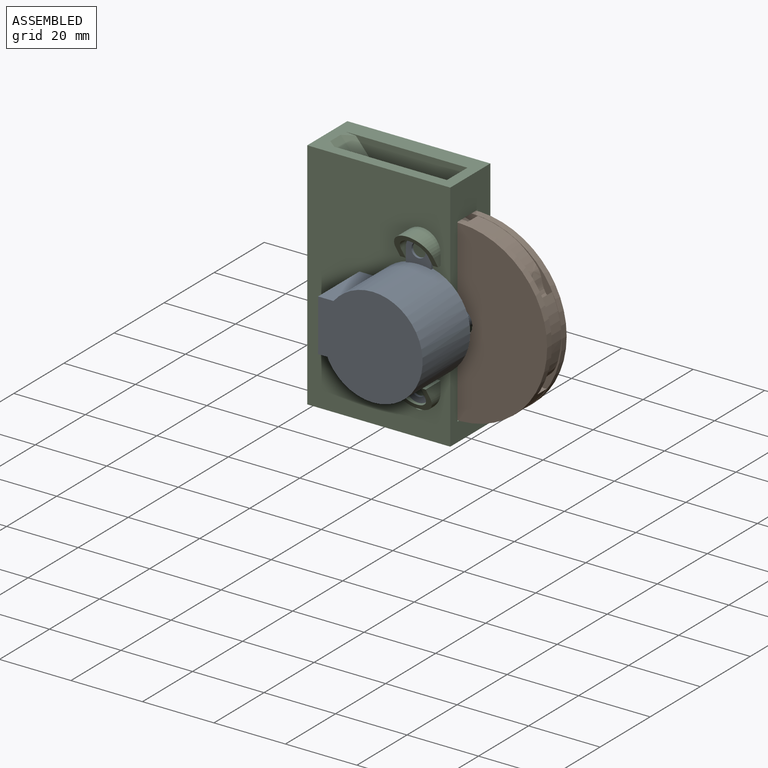
[diagram: assembled view]
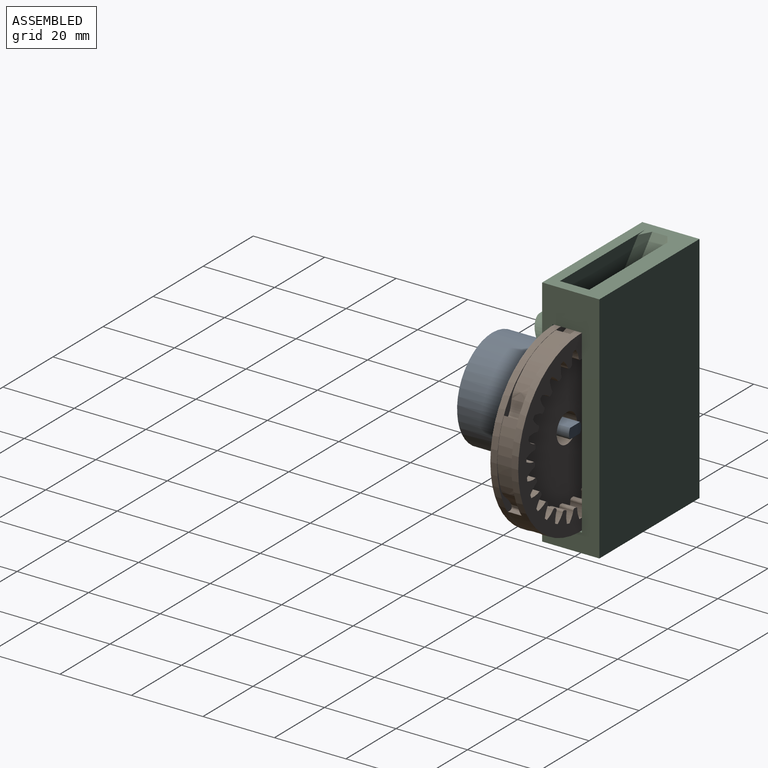
[diagram: assembled view, second angle]
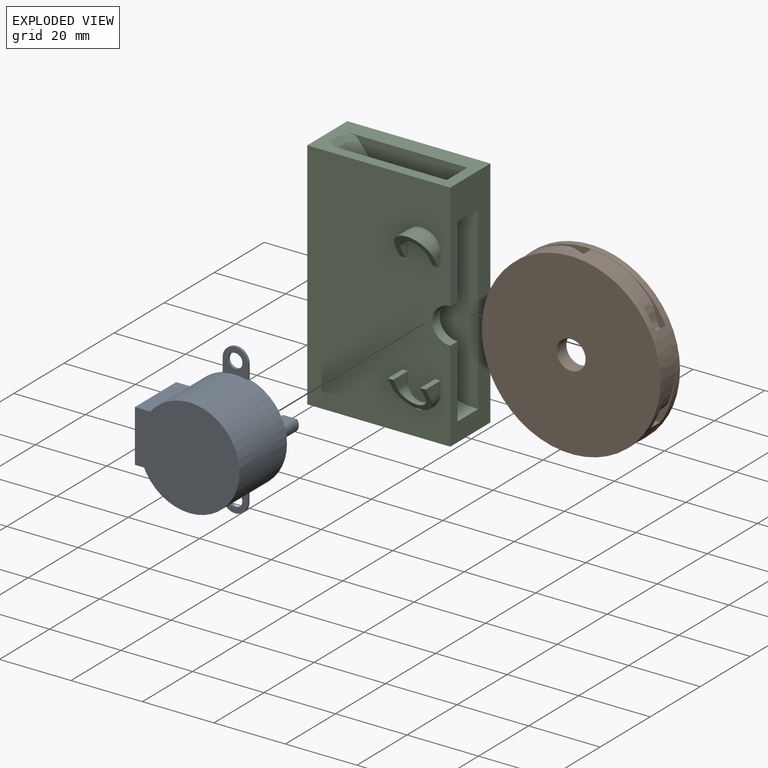
[diagram: exploded view]
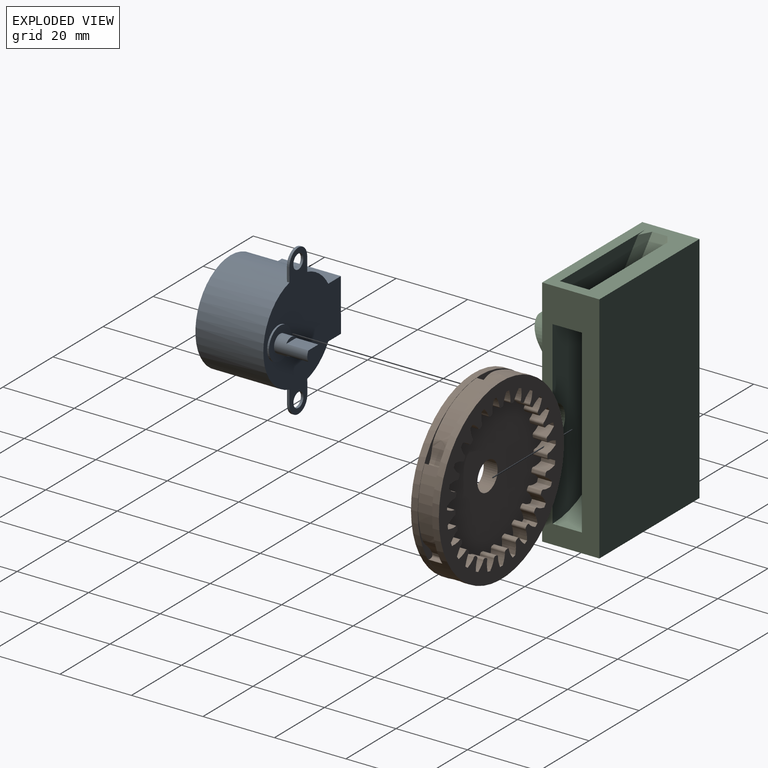
[diagram: exploded view, second angle]
ASSEMBLY  parts=3 mates=2
PART A: 25 faces, bbox 42.1x31x28.8 mm
  f0: cylinder r=14mm len=28mm, axis (0,0,1), area 1407.9mm2, adj f1,f2,f3,f4,f7,f8,f9,f12
  f1: plane 28x28mm, normal (0,0,-1), area 615.8mm2, adj f0
  f2: plane 42.1x31mm, normal (0,0,1), area 671.9mm2, adj f0,f3,f4,f5,f6,f8,f9,f10
  f3: plane 3.96x0.7mm, normal (0,1,0), area 2.8mm2, adj f0,f2,f5,f7
  f4: plane 3.96x0.7mm, normal (0,-1,0), area 2.8mm2, adj f0,f2,f5,f7
  f5: cylinder r=3.55mm len=7.1mm, axis (0,0,1), area 7.8mm2, adj f2,f3,f4,f7
  f6: cylinder r=2mm len=4mm, axis (0,0,1), area 8.8mm2, adj f2,f7
  f7: plane 7.51x7.1mm, normal (0,0,-1), area 33.2mm2, adj f0,f3,f4,f5,f6
  f8: plane 3.96x0.7mm, normal (0,-1,0), area 2.8mm2, adj f0,f2,f10,f12
  f9: plane 3.96x0.7mm, normal (0,1,0), area 2.8mm2, adj f0,f2,f10,f12
  f10: cylinder r=3.55mm len=7.1mm, axis (0,0,1), area 7.8mm2, adj f2,f8,f9,f12
  f11: cylinder r=2mm len=4mm, axis (0,0,1), area 8.8mm2, adj f2,f12
  f12: plane 7.51x7.1mm, normal (0,0,-1), area 33.2mm2, adj f0,f8,f9,f10,f11
  f13: plane 16.5x5.05mm, normal (-1,0,0), area 83.4mm2, adj f0,f2,f14,f16
  f14: plane 16.5x14.6mm, normal (0,-1,0), area 240.9mm2, adj f2,f13,f15,f16
  f15: plane 16.5x5.05mm, normal (1,0,0), area 83.4mm2, adj f0,f2,f14,f16
  f16: plane 14.6x5.05mm, normal (0,0,-1), area 53.5mm2, adj f0,f13,f14,f15
  f17: cylinder r=4.5mm len=9mm, axis (0,0,-1), area 14.1mm2, adj f2,f18
  f18: plane 9x9mm, normal (0,0,1), area 44.8mm2, adj f17,f19
  f19: cylinder r=2.45mm len=9.3mm, axis (0,0,-1), area 86.2mm2, adj f18,f20,f21,f22,f23,f24
  f20: plane 3.95x1mm, normal (0,0,1), area 2.8mm2, adj f19,f23
  f21: plane 3.95x1mm, normal (0,0,1), area 2.8mm2, adj f19,f22
  f22: plane 6.2x3.95mm, normal (1,0,0), area 24.5mm2, adj f19,f21,f24
  f23: plane 6.2x3.95mm, normal (-1,0,0), area 24.5mm2, adj f19,f20,f24
  f24: plane 4.9x2.9mm, normal (0,0,1), area 13.3mm2, adj f19,f22,f23
PART B: 194 faces, bbox 7.8x50x50 mm
  f0: plane 50x50mm, normal (-1,0,0), area 692.2mm2, adj f25,f31,f32,f33,f34,f35,f36,f37
  f1: extruded ~11.61x5.04mm, area 52.5mm2, adj f4,f22,f26,f29
  f2: cylinder r=24.9mm len=8.35mm, axis (-1,0,0), area 46.3mm2, adj f3,f5,f26,f29
  f3: extruded ~4x1.65mm, area 10.9mm2, adj f2,f4,f26,f29
  f4: cylinder r=23mm len=4mm, axis (-1,0,0), area 3.9mm2, adj f1,f3,f26,f29
  f5: extruded ~12.58x4mm, area 52.5mm2, adj f2,f8,f26,f29
  f6: cylinder r=24.9mm len=10.99mm, axis (-1,0,0), area 46.3mm2, adj f7,f9,f26,f29
  f7: extruded ~4x1.88mm, area 10.9mm2, adj f6,f8,f26,f29
  f8: cylinder r=23mm len=4mm, axis (-1,0,0), area 3.9mm2, adj f5,f7,f26,f29
  f9: extruded ~10.17x7.53mm, area 52.5mm2, adj f6,f12,f26,f29
  f10: cylinder r=24.9mm len=11.17mm, axis (-1,0,0), area 46.3mm2, adj f11,f13,f26,f29
  f11: extruded ~4x1.8mm, area 10.9mm2, adj f10,f12,f26,f29
  f12: cylinder r=23mm len=4mm, axis (-1,0,0), area 3.9mm2, adj f9,f11,f26,f29
  f13: extruded ~11.61x5.04mm, area 52.5mm2, adj f10,f16,f26,f29
  f14: cylinder r=24.9mm len=8.35mm, axis (-1,0,0), area 46.3mm2, adj f15,f17,f26,f29
  f15: extruded ~4x1.65mm, area 10.9mm2, adj f14,f16,f26,f29
  f16: cylinder r=23mm len=4mm, axis (-1,0,0), area 3.9mm2, adj f13,f15,f26,f29
  f17: extruded ~12.58x4mm, area 52.5mm2, adj f14,f20,f26,f29
  f18: cylinder r=24.9mm len=10.99mm, axis (-1,0,0), area 46.3mm2, adj f19,f21,f26,f29
  f19: extruded ~4x1.88mm, area 10.9mm2, adj f18,f20,f26,f29
  f20: cylinder r=23mm len=4mm, axis (-1,0,0), area 3.9mm2, adj f17,f19,f26,f29
  f21: extruded ~10.17x7.53mm, area 52.5mm2, adj f18,f24,f26,f29
  f22: cylinder r=24.9mm len=11.17mm, axis (-1,0,0), area 46.3mm2, adj f1,f23,f26,f29
  f23: extruded ~4x1.8mm, area 10.9mm2, adj f22,f24,f26,f29
  f24: cylinder r=23mm len=4mm, axis (-1,0,0), area 3.9mm2, adj f21,f23,f26,f29
  f25: cylinder r=25mm len=50mm, axis (-1,0,0), area 298.5mm2, adj f0,f26
  f26: plane 50x50mm, normal (1,0,0), area 80.2mm2, adj f1,f2,f3,f4,f5,f6,f7,f8
  f27: cylinder r=25mm len=50mm, axis (-1,0,0), area 298.5mm2, adj f28,f29
  f28: plane 50x50mm, normal (1,0,0), area 1912mm2, adj f27,f30
  f29: plane 50x50mm, normal (-1,0,0), area 80.2mm2, adj f1,f2,f3,f4,f5,f6,f7,f8
  f30: cylinder r=4.05mm len=8.1mm, axis (-1,0,0), area 99.2mm2, adj f28,f193
  f31: cylinder r=21.75mm len=3.9mm, axis (-1,0,0), area 4.3mm2, adj f0,f178,f190,f193
  f32: cylinder r=21.75mm len=3.9mm, axis (-1,0,0), area 4.3mm2, adj f0,f185,f188,f193
  f33: cylinder r=21.75mm len=3.9mm, axis (-1,0,0), area 4.3mm2, adj f0,f173,f180,f193
  f34: cylinder r=21.75mm len=3.9mm, axis (-1,0,0), area 4.3mm2, adj f0,f58,f175,f193
  f35: cylinder r=21.75mm len=3.9mm, axis (-1,0,0), area 4.3mm2, adj f0,f170,f183,f193
  f36: cylinder r=21.75mm len=3.9mm, axis (-1,0,0), area 4.3mm2, adj f0,f165,f168,f193
  f37: cylinder r=21.75mm len=3.9mm, axis (-1,0,0), area 4.3mm2, adj f0,f160,f163,f193
  f38: cylinder r=21.75mm len=3.9mm, axis (-1,0,0), area 4.3mm2, adj f0,f155,f158,f193
  f39: cylinder r=21.75mm len=3.9mm, axis (-1,0,0), area 4.3mm2, adj f0,f143,f150,f193
  f40: cylinder r=21.75mm len=3.9mm, axis (-1,0,0), area 4.3mm2, adj f0,f133,f145,f193
  f41: cylinder r=21.75mm len=3.9mm, axis (-1,0,0), area 4.3mm2, adj f0,f140,f153,f193
  f42: cylinder r=21.75mm len=3.9mm, axis (-1,0,0), area 4.3mm2, adj f0,f135,f138,f193
  f43: cylinder r=21.75mm len=3.9mm, axis (-1,0,0), area 4.3mm2, adj f0,f130,f148,f193
  f44: cylinder r=21.75mm len=3.9mm, axis (-1,0,0), area 4.3mm2, adj f0,f125,f128,f193
  f45: cylinder r=21.75mm len=3.9mm, axis (-1,0,0), area 4.3mm2, adj f0,f120,f123,f193
  f46: cylinder r=21.75mm len=3.9mm, axis (-1,0,0), area 4.3mm2, adj f0,f115,f118,f193
  f47: cylinder r=21.75mm len=3.9mm, axis (-1,0,0), area 4.3mm2, adj f0,f103,f110,f193
  f48: cylinder r=21.75mm len=3.9mm, axis (-1,0,0), area 4.3mm2, adj f0,f93,f105,f193
  f49: cylinder r=21.75mm len=3.9mm, axis (-1,0,0), area 4.3mm2, adj f0,f88,f100,f193
  f50: cylinder r=21.75mm len=3.9mm, axis (-1,0,0), area 4.3mm2, adj f0,f95,f98,f193
  f51: cylinder r=21.75mm len=3.9mm, axis (-1,0,0), area 4.3mm2, adj f0,f83,f90,f193
  f52: cylinder r=21.75mm len=3.9mm, axis (-1,0,0), area 4.3mm2, adj f0,f78,f85,f193
  f53: cylinder r=21.75mm len=3.9mm, axis (-1,0,0), area 4.3mm2, adj f0,f73,f80,f193
  f54: cylinder r=21.75mm len=3.9mm, axis (-1,0,0), area 4.3mm2, adj f0,f63,f75,f193
  f55: cylinder r=21.75mm len=3.9mm, axis (-1,0,0), area 4.3mm2, adj f0,f70,f113,f193
  f56: cylinder r=21.75mm len=3.9mm, axis (-1,0,0), area 4.3mm2, adj f0,f65,f68,f193
  f57: cylinder r=21.75mm len=3.9mm, axis (-1,0,0), area 4.3mm2, adj f0,f60,f108,f193
  f58: extruded ~3.9x2.75mm, area 11.8mm2, adj f0,f34,f61,f193
  f59: cylinder r=18.38mm len=3.9mm, axis (-1,0,0), area 2mm2, adj f0,f61,f62,f193
  f60: extruded ~3.9x2.75mm, area 11.8mm2, adj f0,f57,f62,f193
  f61: cylinder r=0.56mm len=3.9mm, axis (-1,0,0), area 3.4mm2, adj f0,f58,f59,f193
  f62: cylinder r=0.56mm len=3.9mm, axis (-1,0,0), area 3.4mm2, adj f0,f59,f60,f193
  f63: extruded ~3.9x2.97mm, area 11.8mm2, adj f0,f54,f66,f193
  f64: cylinder r=18.38mm len=3.9mm, axis (-1,0,0), area 2mm2, adj f0,f66,f67,f193
  f65: extruded ~3.9x2.39mm, area 11.8mm2, adj f0,f56,f67,f193
  f66: cylinder r=0.56mm len=3.9mm, axis (-1,0,0), area 3.4mm2, adj f0,f63,f64,f193
  f67: cylinder r=0.56mm len=3.9mm, axis (-1,0,0), area 3.4mm2, adj f0,f64,f65,f193
  f68: extruded ~3.9x2.8mm, area 11.8mm2, adj f0,f56,f71,f193
  f69: cylinder r=18.38mm len=3.9mm, axis (-1,0,0), area 2mm2, adj f0,f71,f72,f193
  f70: extruded ~3.9x2.74mm, area 11.8mm2, adj f0,f55,f72,f193
  f71: cylinder r=0.56mm len=3.9mm, axis (-1,0,0), area 3.4mm2, adj f0,f68,f69,f193
  f72: cylinder r=0.56mm len=3.9mm, axis (-1,0,0), area 3.4mm2, adj f0,f69,f70,f193
  f73: extruded ~3.9x2.97mm, area 11.8mm2, adj f0,f53,f76,f193
  f74: cylinder r=18.38mm len=3.9mm, axis (-1,0,0), area 2mm2, adj f0,f76,f77,f193
  f75: extruded ~3.9x2.3mm, area 11.8mm2, adj f0,f54,f77,f193
  f76: cylinder r=0.56mm len=3.9mm, axis (-1,0,0), area 3.4mm2, adj f0,f73,f74,f193
  f77: cylinder r=0.56mm len=3.9mm, axis (-1,0,0), area 3.4mm2, adj f0,f74,f75,f193
  f78: extruded ~3.9x2.82mm, area 11.8mm2, adj f0,f52,f81,f193
  f79: cylinder r=18.38mm len=3.9mm, axis (-1,0,0), area 2mm2, adj f0,f81,f82,f193
  f80: extruded ~3.9x2.68mm, area 11.8mm2, adj f0,f53,f82,f193
  f81: cylinder r=0.56mm len=3.9mm, axis (-1,0,0), area 3.4mm2, adj f0,f78,f79,f193
  f82: cylinder r=0.56mm len=3.9mm, axis (-1,0,0), area 3.4mm2, adj f0,f79,f80,f193
  f83: extruded ~3.9x2.51mm, area 11.8mm2, adj f0,f51,f86,f193
  f84: cylinder r=18.38mm len=3.9mm, axis (-1,0,0), area 2mm2, adj f0,f86,f87,f193
  f85: extruded ~3.9x2.91mm, area 11.8mm2, adj f0,f52,f87,f193
  f86: cylinder r=0.56mm len=3.9mm, axis (-1,0,0), area 3.4mm2, adj f0,f83,f84,f193
  f87: cylinder r=0.56mm len=3.9mm, axis (-1,0,0), area 3.4mm2, adj f0,f84,f85,f193
  f88: extruded ~3.9x2.16mm, area 11.8mm2, adj f0,f49,f91,f193
  f89: cylinder r=18.38mm len=3.9mm, axis (-1,0,0), area 2mm2, adj f0,f91,f92,f193
  f90: extruded ~3.9x2.99mm, area 11.8mm2, adj f0,f51,f92,f193
  f91: cylinder r=0.56mm len=3.9mm, axis (-1,0,0), area 3.4mm2, adj f0,f88,f89,f193
  f92: cylinder r=0.56mm len=3.9mm, axis (-1,0,0), area 3.4mm2, adj f0,f89,f90,f193
  f93: extruded ~3.9x2.86mm, area 11.8mm2, adj f0,f48,f96,f193
  f94: cylinder r=18.38mm len=3.9mm, axis (-1,0,0), area 2mm2, adj f0,f96,f97,f193
  f95: extruded ~3.9x2.66mm, area 11.8mm2, adj f0,f50,f97,f193
  f96: cylinder r=0.56mm len=3.9mm, axis (-1,0,0), area 3.4mm2, adj f0,f93,f94,f193
  f97: cylinder r=0.56mm len=3.9mm, axis (-1,0,0), area 3.4mm2, adj f0,f94,f95,f193
  f98: extruded ~3.9x2.58mm, area 11.8mm2, adj f0,f50,f101,f193
  f99: cylinder r=18.38mm len=3.9mm, axis (-1,0,0), area 2mm2, adj f0,f101,f102,f193
  f100: extruded ~3.9x2.9mm, area 11.8mm2, adj f0,f49,f102,f193
  f101: cylinder r=0.56mm len=3.9mm, axis (-1,0,0), area 3.4mm2, adj f0,f98,f99,f193
  f102: cylinder r=0.56mm len=3.9mm, axis (-1,0,0), area 3.4mm2, adj f0,f99,f100,f193
  f103: extruded ~3.9x2.98mm, area 11.8mm2, adj f0,f47,f106,f193
  f104: cylinder r=18.38mm len=3.9mm, axis (-1,0,0), area 2mm2, adj f0,f106,f107,f193
  f105: extruded ~3.9x2.28mm, area 11.8mm2, adj f0,f48,f107,f193
  f106: cylinder r=0.56mm len=3.9mm, axis (-1,0,0), area 3.4mm2, adj f0,f103,f104,f193
  f107: cylinder r=0.56mm len=3.9mm, axis (-1,0,0), area 3.4mm2, adj f0,f104,f105,f193
  f108: extruded ~3.9x2.95mm, area 11.8mm2, adj f0,f57,f111,f193
  f109: cylinder r=18.38mm len=3.9mm, axis (-1,0,0), area 2mm2, adj f0,f111,f112,f193
  f110: extruded ~3.9x2.41mm, area 11.8mm2, adj f0,f47,f112,f193
  f111: cylinder r=0.56mm len=3.9mm, axis (-1,0,0), area 3.4mm2, adj f0,f108,f109,f193
  f112: cylinder r=0.56mm len=3.9mm, axis (-1,0,0), area 3.4mm2, adj f0,f109,f110,f193
  f113: extruded ~3.9x2.49mm, area 11.8mm2, adj f0,f55,f116,f193
  f114: cylinder r=18.38mm len=3.9mm, axis (-1,0,0), area 2mm2, adj f0,f116,f117,f193
  f115: extruded ~3.9x2.94mm, area 11.8mm2, adj f0,f46,f117,f193
  f116: cylinder r=0.56mm len=3.9mm, axis (-1,0,0), area 3.4mm2, adj f0,f113,f114,f193
  f117: cylinder r=0.56mm len=3.9mm, axis (-1,0,0), area 3.4mm2, adj f0,f114,f115,f193
  f118: extruded ~3.9x2.19mm, area 11.8mm2, adj f0,f46,f121,f193
  f119: cylinder r=18.38mm len=3.9mm, axis (-1,0,0), area 2mm2, adj f0,f121,f122,f193
  f120: extruded ~3.9x2.99mm, area 11.8mm2, adj f0,f45,f122,f193
  f121: cylinder r=0.56mm len=3.9mm, axis (-1,0,0), area 3.4mm2, adj f0,f118,f119,f193
  f122: cylinder r=0.56mm len=3.9mm, axis (-1,0,0), area 3.4mm2, adj f0,f119,f120,f193
  f123: extruded ~3.9x2.6mm, area 11.8mm2, adj f0,f45,f126,f193
  f124: cylinder r=18.38mm len=3.9mm, axis (-1,0,0), area 2mm2, adj f0,f126,f127,f193
  f125: extruded ~3.9x2.87mm, area 11.8mm2, adj f0,f44,f127,f193
  f126: cylinder r=0.56mm len=3.9mm, axis (-1,0,0), area 3.4mm2, adj f0,f123,f124,f193
  f127: cylinder r=0.56mm len=3.9mm, axis (-1,0,0), area 3.4mm2, adj f0,f124,f125,f193
  f128: extruded ~3.9x2.87mm, area 11.8mm2, adj f0,f44,f131,f193
  f129: cylinder r=18.38mm len=3.9mm, axis (-1,0,0), area 2mm2, adj f0,f131,f132,f193
  f130: extruded ~3.9x2.6mm, area 11.8mm2, adj f0,f43,f132,f193
  f131: cylinder r=0.56mm len=3.9mm, axis (-1,0,0), area 3.4mm2, adj f0,f128,f129,f193
  f132: cylinder r=0.56mm len=3.9mm, axis (-1,0,0), area 3.4mm2, adj f0,f129,f130,f193
  f133: extruded ~3.9x2.74mm, area 11.8mm2, adj f0,f40,f136,f193
  f134: cylinder r=18.38mm len=3.9mm, axis (-1,0,0), area 2mm2, adj f0,f136,f137,f193
  f135: extruded ~3.9x2.8mm, area 11.8mm2, adj f0,f42,f137,f193
  f136: cylinder r=0.56mm len=3.9mm, axis (-1,0,0), area 3.4mm2, adj f0,f133,f134,f193
  f137: cylinder r=0.56mm len=3.9mm, axis (-1,0,0), area 3.4mm2, adj f0,f134,f135,f193
  f138: extruded ~3.9x2.39mm, area 11.8mm2, adj f0,f42,f141,f193
  f139: cylinder r=18.38mm len=3.9mm, axis (-1,0,0), area 2mm2, adj f0,f141,f142,f193
  f140: extruded ~3.9x2.97mm, area 11.8mm2, adj f0,f41,f142,f193
  f141: cylinder r=0.56mm len=3.9mm, axis (-1,0,0), area 3.4mm2, adj f0,f138,f139,f193
  f142: cylinder r=0.56mm len=3.9mm, axis (-1,0,0), area 3.4mm2, adj f0,f139,f140,f193
  f143: extruded ~3.9x2.94mm, area 11.8mm2, adj f0,f39,f146,f193
  f144: cylinder r=18.38mm len=3.9mm, axis (-1,0,0), area 2mm2, adj f0,f146,f147,f193
  f145: extruded ~3.9x2.49mm, area 11.8mm2, adj f0,f40,f147,f193
  f146: cylinder r=0.56mm len=3.9mm, axis (-1,0,0), area 3.4mm2, adj f0,f143,f144,f193
  f147: cylinder r=0.56mm len=3.9mm, axis (-1,0,0), area 3.4mm2, adj f0,f144,f145,f193
  f148: extruded ~3.9x2.99mm, area 11.8mm2, adj f0,f43,f151,f193
  f149: cylinder r=18.38mm len=3.9mm, axis (-1,0,0), area 2mm2, adj f0,f151,f152,f193
  f150: extruded ~3.9x2.19mm, area 11.8mm2, adj f0,f39,f152,f193
  f151: cylinder r=0.56mm len=3.9mm, axis (-1,0,0), area 3.4mm2, adj f0,f148,f149,f193
  f152: cylinder r=0.56mm len=3.9mm, axis (-1,0,0), area 3.4mm2, adj f0,f149,f150,f193
  f153: extruded ~3.9x2.3mm, area 11.8mm2, adj f0,f41,f156,f193
  f154: cylinder r=18.38mm len=3.9mm, axis (-1,0,0), area 2mm2, adj f0,f156,f157,f193
  f155: extruded ~3.9x2.97mm, area 11.8mm2, adj f0,f38,f157,f193
  f156: cylinder r=0.56mm len=3.9mm, axis (-1,0,0), area 3.4mm2, adj f0,f153,f154,f193
  f157: cylinder r=0.56mm len=3.9mm, axis (-1,0,0), area 3.4mm2, adj f0,f154,f155,f193
  f158: extruded ~3.9x2.68mm, area 11.8mm2, adj f0,f38,f161,f193
  f159: cylinder r=18.38mm len=3.9mm, axis (-1,0,0), area 2mm2, adj f0,f161,f162,f193
  f160: extruded ~3.9x2.82mm, area 11.8mm2, adj f0,f37,f162,f193
  f161: cylinder r=0.56mm len=3.9mm, axis (-1,0,0), area 3.4mm2, adj f0,f158,f159,f193
  f162: cylinder r=0.56mm len=3.9mm, axis (-1,0,0), area 3.4mm2, adj f0,f159,f160,f193
  f163: extruded ~3.9x2.91mm, area 11.8mm2, adj f0,f37,f166,f193
  f164: cylinder r=18.38mm len=3.9mm, axis (-1,0,0), area 2mm2, adj f0,f166,f167,f193
  f165: extruded ~3.9x2.51mm, area 11.8mm2, adj f0,f36,f167,f193
  f166: cylinder r=0.56mm len=3.9mm, axis (-1,0,0), area 3.4mm2, adj f0,f163,f164,f193
  f167: cylinder r=0.56mm len=3.9mm, axis (-1,0,0), area 3.4mm2, adj f0,f164,f165,f193
  f168: extruded ~3.9x2.99mm, area 11.8mm2, adj f0,f36,f171,f193
  f169: cylinder r=18.38mm len=3.9mm, axis (-1,0,0), area 2mm2, adj f0,f171,f172,f193
  f170: extruded ~3.9x2.16mm, area 11.8mm2, adj f0,f35,f172,f193
  f171: cylinder r=0.56mm len=3.9mm, axis (-1,0,0), area 3.4mm2, adj f0,f168,f169,f193
  f172: cylinder r=0.56mm len=3.9mm, axis (-1,0,0), area 3.4mm2, adj f0,f169,f170,f193
  f173: extruded ~3.9x2.41mm, area 11.8mm2, adj f0,f33,f176,f193
  f174: cylinder r=18.38mm len=3.9mm, axis (-1,0,0), area 2mm2, adj f0,f176,f177,f193
  f175: extruded ~3.9x2.95mm, area 11.8mm2, adj f0,f34,f177,f193
  f176: cylinder r=0.56mm len=3.9mm, axis (-1,0,0), area 3.4mm2, adj f0,f173,f174,f193
  f177: cylinder r=0.56mm len=3.9mm, axis (-1,0,0), area 3.4mm2, adj f0,f174,f175,f193
  f178: extruded ~3.9x2.28mm, area 11.8mm2, adj f0,f31,f181,f193
  f179: cylinder r=18.38mm len=3.9mm, axis (-1,0,0), area 2mm2, adj f0,f181,f182,f193
  f180: extruded ~3.9x2.98mm, area 11.8mm2, adj f0,f33,f182,f193
  f181: cylinder r=0.56mm len=3.9mm, axis (-1,0,0), area 3.4mm2, adj f0,f178,f179,f193
  f182: cylinder r=0.56mm len=3.9mm, axis (-1,0,0), area 3.4mm2, adj f0,f179,f180,f193
  f183: extruded ~3.9x2.9mm, area 11.8mm2, adj f0,f35,f186,f193
  f184: cylinder r=18.38mm len=3.9mm, axis (-1,0,0), area 2mm2, adj f0,f186,f187,f193
  f185: extruded ~3.9x2.58mm, area 11.8mm2, adj f0,f32,f187,f193
  f186: cylinder r=0.56mm len=3.9mm, axis (-1,0,0), area 3.4mm2, adj f0,f183,f184,f193
  f187: cylinder r=0.56mm len=3.9mm, axis (-1,0,0), area 3.4mm2, adj f0,f184,f185,f193
  f188: extruded ~3.9x2.66mm, area 11.8mm2, adj f0,f32,f191,f193
  f189: cylinder r=18.38mm len=3.9mm, axis (-1,0,0), area 2mm2, adj f0,f191,f192,f193
  f190: extruded ~3.9x2.86mm, area 11.8mm2, adj f0,f31,f192,f193
  f191: cylinder r=0.56mm len=3.9mm, axis (-1,0,0), area 3.4mm2, adj f0,f188,f189,f193
  f192: cylinder r=0.56mm len=3.9mm, axis (-1,0,0), area 3.4mm2, adj f0,f189,f190,f193
  f193: plane 43.48x43.41mm, normal (-1,0,0), area 1219.8mm2, adj f30,f31,f32,f33,f34,f35,f36,f37
PART C: 37 faces, bbox 40.4x22.4x65.9 mm
  f0: plane 6x3mm, normal (-1,0,0), area 15.3mm2, adj f4,f9,f27,f36
  f1: cylinder r=3.8mm len=7.6mm, axis (0,-1,0), area 32.2mm2, adj f2,f5,f9,f36
  f2: plane 6x3mm, normal (-1,0,0), area 15.3mm2, adj f1,f9,f26,f36
  f3: plane 6x3mm, normal (1,0,0), area 15.3mm2, adj f4,f9,f26,f36
  f4: cylinder r=5.3mm len=10.6mm, axis (0,-1,0), area 35.2mm2, adj f0,f3,f9,f35,f36
  f5: plane 6x3mm, normal (1,0,0), area 15.3mm2, adj f1,f9,f27,f36
  f6: plane 1.5x1mm, normal (0,0,-1), area 1.5mm2, adj f7,f9,f31,f34
  f7: plane 3x2.82mm, normal (-1,0,0), area 5.7mm2, adj f6,f9,f32,f34
  f8: plane 1.81x0.08mm, normal (0,1,0), area 0.1mm2, adj f32,f34
  f9: plane 65.5x40mm, normal (0,1,0), area 2519.8mm2, adj f0,f1,f2,f3,f4,f5,f6,f7
  f10: plane 19.94x16.73mm, normal (-0.77,0,0.64), area 109.3mm2, adj f12,f13,f15,f23
  f11: plane 9.91x8.2mm, normal (1,0,-0.01), area 81.3mm2, adj f14,f15,f19,f24
  f12: plane 19.95x18.02mm, normal (-0.54,-0.71,0.45), area 70.2mm2, adj f10,f19,f20,f23
  f13: plane 19.95x18.02mm, normal (-0.54,0.71,0.45), area 70.2mm2, adj f10,f14,f21,f23
  f14: plane 60.25x37mm, normal (0,1,0), area 1349.9mm2, adj f11,f13,f15,f16,f21,f23,f24
  f15: plane 40x16mm, normal (0,0,1), area 361mm2, adj f9,f10,f11,f14,f16,f17,f18,f19
  f16: plane 65.5x16mm, normal (-1,0,0), area 604.9mm2, adj f9,f14,f15,f17,f19,f22,f23,f24
  f17: plane 65.5x40mm, normal (0,-1,0), area 2620mm2, adj f15,f16,f18,f22
  f18: plane 65.5x16mm, normal (1,0,0), area 1048mm2, adj f9,f15,f17,f22
  f19: plane 60.25x37mm, normal (0,-1,0), area 1310.6mm2, adj f11,f12,f15,f16,f20,f23,f24,f25
  f20: plane 2.82x2mm, normal (-0.09,0,1), area 2.8mm2, adj f12,f15,f19
  f21: plane 2.82x2mm, normal (-0.09,0,1), area 2.8mm2, adj f13,f14,f15
  f22: plane 40x16mm, normal (0,0,-1), area 640mm2, adj f9,f16,f17,f18
  f23: cylinder r=25.25mm len=41.89mm, axis (0,1,0), area 461.6mm2, adj f10,f12,f13,f14,f16,f19
  f24: cylinder r=25.25mm len=8.2mm, axis (0,1,0), area 23.4mm2, adj f11,f14,f16,f19
  f25: cylinder r=5mm len=10mm, axis (0,1,0), area 45.6mm2, adj f9,f16,f19
  f26: plane 6x1.5mm, normal (0,0,1), area 9mm2, adj f2,f3,f9,f36
  f27: plane 6x1.5mm, normal (0,0,1), area 9mm2, adj f0,f5,f9,f36
  f28: plane 1.5x1mm, normal (0,0,-1), area 1.5mm2, adj f9,f29,f33,f34
  f29: plane 3x2.82mm, normal (-1,0,0), area 5.7mm2, adj f9,f28,f30,f34
  f30: cylinder r=3.8mm len=7.6mm, axis (0,-1,0), area 51.3mm2, adj f9,f29,f31,f34
  f31: plane 3x2.82mm, normal (1,0,0), area 5.7mm2, adj f6,f9,f30,f34
  f32: cylinder r=5.3mm len=10.6mm, axis (0,-1,0), area 81.1mm2, adj f7,f8,f9,f33,f34
  f33: plane 3x2.82mm, normal (1,0,0), area 5.7mm2, adj f9,f28,f32,f34
  f34: plane 10.6x8.22mm, normal (0,0.85,-0.52), area 35.5mm2, adj f6,f7,f8,f28,f29,f30,f31,f32
  f35: plane 2.51x0.61mm, normal (0,0.46,0.89), area 0.3mm2, adj f4,f36
  f36: plane 10.6x8.19mm, normal (0,0.85,-0.52), area 35.5mm2, adj f0,f1,f2,f3,f4,f5,f26,f27
PLACE A rot(axis=(-0.58,-0.58,-0.58),120deg) t=(-7.69,-9.5,-0.2)mm
PLACE B rot(axis=(0.58,-0.58,-0.58),120deg) t=(0.31,2,-0.21)mm
PLACE C rot(axis=(0,0,-1),180deg) t=(0.31,-8.9,9.79)mm
MATE revolute C.f23 <-> B.f25  axis (0,-1,0) through (0.31,-5.9,-0.21)mm
MATE revolute B.f25 <-> A.f17  axis (0,-1,0) through (0.31,-5.9,-0.21)mm
